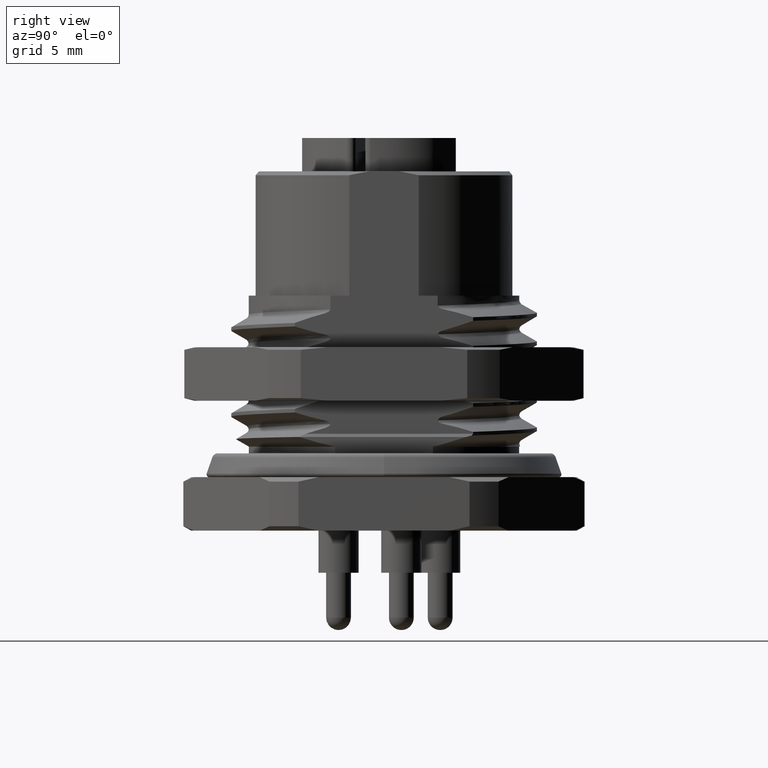
[diagram: clean part render]
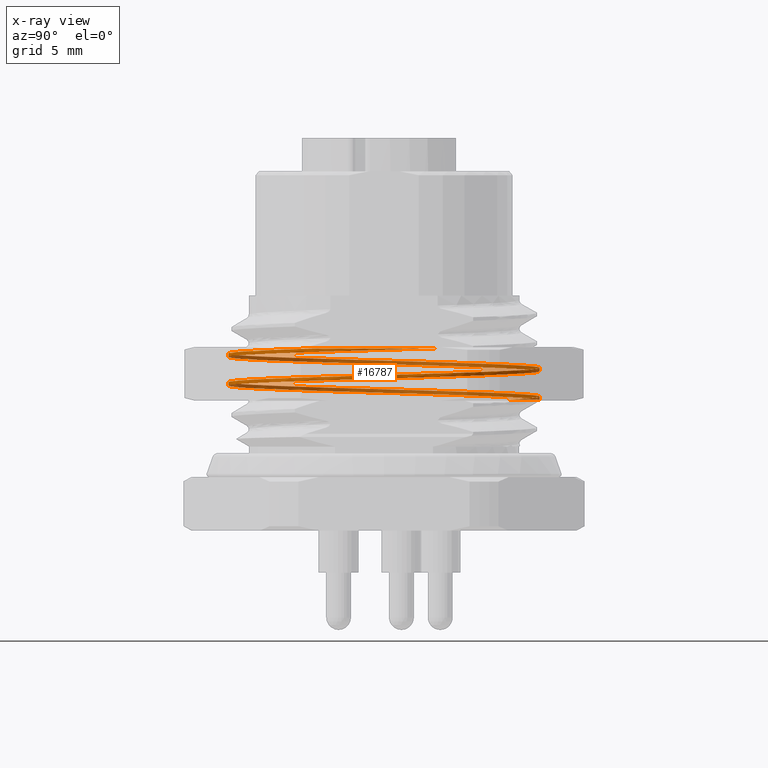
[diagram: x-ray — body ghosted, one internal face saturated and labeled with its STEP entity id]
A machine part, right view, then the same camera in x-ray: the body is ghosted and one INTERNAL B-rep face — a face not visible from any outside direction — is saturated and labeled: STEP entity #16787.
In plain terms, the highlighted face is a freeform B-spline surface patch.
Its self-contained STEP definition (entity closure, byte-faithful):
#15672=CARTESIAN_POINT('',(0.E0,0.E0,-2.738800871466E0));
#15673=DIRECTION('',(0.E0,0.E0,1.E0));
#15674=DIRECTION('',(0.E0,1.E0,0.E0));
#15675=AXIS2_PLACEMENT_3D('',#15672,#15673,#15674);
#15707=CARTESIAN_POINT('',(1.115435560299E0,8.067251050440E0,
-2.738800871466E0));
#15708=CARTESIAN_POINT('',(7.237404196698E-1,8.121409609027E0,
-2.727209521929E0));
#15709=CARTESIAN_POINT('',(-6.754921789470E-2,8.172570524194E0,
-2.704026822856E0));
#15710=CARTESIAN_POINT('',(-1.253055727409E0,8.076219714956E0,
-2.669252774247E0));
#15711=CARTESIAN_POINT('',(-2.412022167438E0,7.808816926826E0,
-2.634478725637E0));
#15712=CARTESIAN_POINT('',(-3.519902907004E0,7.376025797562E0,
-2.599704677028E0));
#15713=CARTESIAN_POINT('',(-4.553233120826E0,6.787012677389E0,
-2.564930628418E0));
#15714=CARTESIAN_POINT('',(-5.490127255637E0,6.054252694288E0,
-2.530156579809E0));
#15715=CARTESIAN_POINT('',(-6.310742160722E0,5.193265479440E0,
-2.495382531199E0));
#15716=CARTESIAN_POINT('',(-6.997697466675E0,4.222286480924E0,
-2.460608482590E0));
#15717=CARTESIAN_POINT('',(-7.536443667712E0,3.161880738521E0,
-2.425834433980E0));
#15718=CARTESIAN_POINT('',(-7.915570283447E0,2.034507323477E0,
-2.391060385371E0));
#15719=CARTESIAN_POINT('',(-8.127047527343E0,8.640436619258E-1,
-2.356286336761E0));
#15720=CARTESIAN_POINT('',(-8.166396375700E0,-3.247201816662E-1,
-2.321512288152E0));
#15721=CARTESIAN_POINT('',(-8.032783431867E0,-1.506606550544E0,
-2.286738239542E0));
#15722=CARTESIAN_POINT('',(-7.729038577371E0,-2.656583450776E0,
-2.251964190933E0));
#15723=CARTESIAN_POINT('',(-7.261595035873E0,-3.750294721272E0,
-2.217190142323E0));
#15724=CARTESIAN_POINT('',(-6.640353119454E0,-4.764575889875E0,
-2.182416093714E0));
#15725=CARTESIAN_POINT('',(-5.878470543010E0,-5.677944789833E0,
-2.147642045104E0));
#15726=CARTESIAN_POINT('',(-4.992083747854E0,-6.471056545560E0,
-2.112867996495E0));
#15727=CARTESIAN_POINT('',(-3.999966136796E0,-7.127113291221E0,
-2.078093947885E0));
#15728=CARTESIAN_POINT('',(-2.923130459178E0,-7.632219944423E0,
-2.043319899276E0));
#15729=CARTESIAN_POINT('',(-1.784383767233E0,-7.975678499830E0,
-2.008545850666E0));
#15730=CARTESIAN_POINT('',(-6.078443696520E-1,-8.150214609672E0,
-1.973771802057E0));
#15731=CARTESIAN_POINT('',(5.815689868591E-1,-8.152131652209E0,
-1.938997753447E0));
#15732=CARTESIAN_POINT('',(1.758664889058E0,-7.981389025064E0,
-1.904223704838E0));
#15733=CARTESIAN_POINT('',(2.898512803642E0,-7.641603005165E0,
-1.869449656228E0));
#15734=CARTESIAN_POINT('',(3.976971098357E0,-7.139970157098E0,
-1.834675607619E0));
#15735=CARTESIAN_POINT('',(4.971198354434E0,-6.487114912062E0,
-1.799901559009E0));
#15736=CARTESIAN_POINT('',(5.860137140892E0,-5.696864545639E0,
-1.765127510400E0));
#15737=CARTESIAN_POINT('',(6.624960004520E0,-4.785956320311E0,
-1.730353461790E0));
#15738=CARTESIAN_POINT('',(7.249468229618E0,-3.773682995322E0,
-1.695579413181E0));
#15739=CARTESIAN_POINT('',(7.720434921863E0,-2.681484211907E0,
-1.660805364571E0));
#15740=CARTESIAN_POINT('',(8.027885149914E0,-1.532492408206E0,
-1.626031315962E0));
#15741=CARTESIAN_POINT('',(8.165307211424E0,-3.510428812653E-1,
-1.591257267352E0));
#15742=CARTESIAN_POINT('',(8.129790548914E0,8.378416271639E-1,
-1.556483218743E0));
#15743=CARTESIAN_POINT('',(7.922087394497E0,2.008980904681E0,
-1.521709170133E0));
#15744=CARTESIAN_POINT('',(7.546596837830E0,3.137570577482E0,
-1.486935121524E0));
#15745=CARTESIAN_POINT('',(7.011271654732E0,4.199707459452E0,
-1.452161072914E0));
#15746=CARTESIAN_POINT('',(6.327449869812E0,5.172895814380E0,
-1.417387024305E0));
#15747=CARTESIAN_POINT('',(5.509614620555E0,6.036523808815E0,
-1.382612975695E0));
#15748=CARTESIAN_POINT('',(4.575087408870E0,6.772300064425E0,
-1.347838927086E0));
#15749=CARTESIAN_POINT('',(3.543661236953E0,7.364641063836E0,
-1.313064878476E0));
#15750=CARTESIAN_POINT('',(2.437181397511E0,7.801001204784E0,
-1.278290829867E0));
#15751=CARTESIAN_POINT('',(1.279082797112E0,8.072138512163E0,
-1.243516781257E0));
#15752=CARTESIAN_POINT('',(9.389361198437E-2,8.172310380244E0,
-1.208742732648E0));
#15753=CARTESIAN_POINT('',(-1.093284211296E0,8.099395199319E0,
-1.173968684038E0));
#15754=CARTESIAN_POINT('',(-2.257306607402E0,7.854937290749E0,
-1.139194635429E0));
#15755=CARTESIAN_POINT('',(-3.373519935913E0,7.444114198709E0,
-1.104420586819E0));
#15756=CARTESIAN_POINT('',(-4.418283137924E0,6.875627031374E0,
-1.069646538210E0));
#15757=CARTESIAN_POINT('',(-5.369468446482E0,6.161516174097E0,
-1.034872489600E0));
#15758=CARTESIAN_POINT('',(-6.206930045968E0,5.316906277703E0,
-1.000098440991E0));
#15759=CARTESIAN_POINT('',(-6.912930754340E0,4.359685922990E0,
-9.653243923812E-1));
#15760=CARTESIAN_POINT('',(-7.472517691260E0,3.310128746021E0,
-9.305503437717E-1));
#15761=CARTESIAN_POINT('',(-7.873838975549E0,2.190464048678E0,
-8.957762951622E-1));
#15762=CARTESIAN_POINT('',(-8.108394744431E0,1.024405988810E0,
-8.610022465527E-1));
#15763=CARTESIAN_POINT('',(-8.171217178039E0,-1.633486784233E-1,
-8.262281979432E-1));
#15764=CARTESIAN_POINT('',(-8.060975716331E0,-1.347643670315E0,
-7.914541493337E-1));
#15765=CARTESIAN_POINT('',(-7.780005239947E0,-2.503395979030E0,
-7.566801007242E-1));
#15766=CARTESIAN_POINT('',(-7.334256618145E0,-3.606127122083E0,
-7.219060521147E-1));
#15767=CARTESIAN_POINT('',(-6.733170671201E0,-4.632481589159E0,
-6.871320035052E-1));
#15768=CARTESIAN_POINT('',(-5.989478216709E0,-5.560721504714E0,
-6.523579548957E-1));
#15769=CARTESIAN_POINT('',(-5.118930434729E0,-6.371187029575E0,
-6.175839062862E-1));
#15770=CARTESIAN_POINT('',(-4.139965262587E0,-7.046712750353E0,
-5.828098576767E-1));
#15771=CARTESIAN_POINT('',(-3.073316884969E0,-7.572991237681E0,
-5.480358090672E-1));
#15772=CARTESIAN_POINT('',(-1.941576590190E0,-7.938876073214E0,
-5.132617604577E-1));
#15773=CARTESIAN_POINT('',(-7.687142935809E-1,-8.136617927387E0,
-4.784877118481E-1));
#15774=CARTESIAN_POINT('',(4.204291380334E-1,-8.162028687851E0,
-4.437136632386E-1));
#15775=CARTESIAN_POINT('',(1.600668008339E0,-8.014570162433E0,
-4.089396146291E-1));
#15776=CARTESIAN_POINT('',(2.747005216920E0,-7.697365477840E0,
-3.741655660196E-1));
#15777=CARTESIAN_POINT('',(3.835161690259E0,-7.217132932936E0,
-3.393915174101E-1));
#15778=CARTESIAN_POINT('',(4.842090605083E0,-6.584043706660E0,
-3.046174688006E-1));
#15779=CARTESIAN_POINT('',(5.746465513247E0,-5.811506437616E0,
-2.698434201911E-1));
#15780=CARTESIAN_POINT('',(6.529132028778E0,-4.915883225465E0,
-2.350693715816E-1));
#15781=CARTESIAN_POINT('',(7.173513514342E0,-3.916143115438E0,
-2.002953229721E-1));
#15782=CARTESIAN_POINT('',(7.665962160443E0,-2.833460232216E0,
-1.655212743626E-1));
#15783=CARTESIAN_POINT('',(7.996048075239E0,-1.690765719641E0,
-1.307472257531E-1));
#15784=CARTESIAN_POINT('',(8.156780061986E0,-5.122605686223E-1,
-9.597317714360E-2));
#15785=CARTESIAN_POINT('',(8.148762790699E0,2.806407197604E-1,
-7.279047807060E-2));
#15786=CARTESIAN_POINT('',(8.116003443870E0,6.747029710054E-1,
-6.119912853410E-2));
#15788=CARTESIAN_POINT('',(0.E0,0.E0,-6.119912853410E-2));
#15789=DIRECTION('',(0.E0,0.E0,-1.E0));
#15790=DIRECTION('',(6.444945728320E-1,7.646088840643E-1,0.E0));
#15791=AXIS2_PLACEMENT_3D('',#15788,#15789,#15790);
#15818=CARTESIAN_POINT('',(-4.929264283971E0,6.482830370970E0,
-2.738800871466E0));
#15819=CARTESIAN_POINT('',(-5.244029888506E0,6.243496196933E0,
-2.727209521929E0));
#15820=CARTESIAN_POINT('',(-5.838634979680E0,5.718899670726E0,
-2.704026822856E0));
#15821=CARTESIAN_POINT('',(-6.606884292705E0,4.810878660188E0,
-2.669252774247E0));
#15822=CARTESIAN_POINT('',(-7.235201218508E0,3.800965148563E0,
-2.634478725637E0));
#15823=CARTESIAN_POINT('',(-7.710278939642E0,2.710548231254E0,
-2.599704677028E0));
#15824=CARTESIAN_POINT('',(-8.022055255068E0,1.562722758601E0,
-2.564930628418E0));
#15825=CARTESIAN_POINT('',(-8.163926890642E0,3.817992844935E-1,
-2.530156579809E0));
#15826=CARTESIAN_POINT('',(-8.132889033946E0,-8.072105800706E-1,
-2.495382531199E0));
#15827=CARTESIAN_POINT('',(-7.929599061182E0,-1.979123970603E0,
-2.460608482590E0));
#15828=CARTESIAN_POINT('',(-7.558362591134E0,-3.109120117039E0,
-2.425834433980E0));
#15829=CARTESIAN_POINT('',(-7.027042299636E0,-4.173266044790E0,
-2.391060385371E0));
#15830=CARTESIAN_POINT('',(-6.346891388838E0,-5.149023466611E0,
-2.356286336761E0));
#15831=CARTESIAN_POINT('',(-5.532315248243E0,-6.015726137008E0,
-2.321512288152E0));
#15832=CARTESIAN_POINT('',(-4.600566352829E0,-6.755017556945E0,
-2.286738239542E0));
#15833=CARTESIAN_POINT('',(-3.571378860896E0,-7.351239758936E0,
-2.251964190933E0));
#15834=CARTESIAN_POINT('',(-2.466550650591E0,-7.791764938028E0,
-2.217190142323E0));
#15835=CARTESIAN_POINT('',(-1.309481647479E0,-8.067262904873E0,
-2.182416093714E0));
#15836=CARTESIAN_POINT('',(-1.246782212296E-1,-8.171898696299E0,
-2.147642045104E0));
#15837=CARTESIAN_POINT('',(1.062765851836E0,-8.103456158060E0,
-2.112867996495E0));
#15838=CARTESIAN_POINT('',(2.227700867301E0,-7.863384882304E0,
-2.078093947885E0));
#15839=CARTESIAN_POINT('',(3.345453855744E0,-7.456769505658E0,
-2.043319899276E0));
#15840=CARTESIAN_POINT('',(4.392351148731E0,-6.892222018164E0,
-2.008545850666E0));
#15841=CARTESIAN_POINT('',(5.346219779912E0,-6.181699363953E0,
-1.973771802057E0));
#15842=CARTESIAN_POINT('',(6.186857101710E0,-5.340250196802E0,
-1.938997753447E0));
#15843=CARTESIAN_POINT('',(6.896458671250E0,-4.385696154222E0,
-1.904223704838E0));
#15844=CARTESIAN_POINT('',(7.459995343049E0,-3.338254400597E0,
-1.869449656228E0));
#15845=CARTESIAN_POINT('',(7.865531581745E0,-2.220109433787E0,
-1.834675607619E0));
#15846=CARTESIAN_POINT('',(8.104478253109E0,-1.054943224209E0,
-1.799901559009E0));
#15847=CARTESIAN_POINT('',(8.171774539295E0,1.325663620959E-1,
-1.765127510400E0));
#15848=CARTESIAN_POINT('',(8.065995125422E0,1.317268233159E0,
-1.730353461790E0));
#15849=CARTESIAN_POINT('',(7.789380387315E0,2.474070763568E0,
-1.695579413181E0));
#15850=CARTESIAN_POINT('',(7.347788941019E0,3.578473227463E0,
-1.660805364571E0));
#15851=CARTESIAN_POINT('',(6.750573559098E0,4.607084716459E0,
-1.626031315962E0));
#15852=CARTESIAN_POINT('',(6.010383081753E0,5.538119551977E0,
-1.591257267352E0));
#15853=CARTESIAN_POINT('',(5.142894518236E0,6.351858699288E0,
-1.556483218743E0));
#15854=CARTESIAN_POINT('',(4.166481012555E0,7.031067410674E0,
-1.521709170133E0));
#15855=CARTESIAN_POINT('',(3.101822705875E0,7.561360252146E0,
-1.486935121524E0));
#15856=CARTESIAN_POINT('',(1.971468737416E0,7.931505782562E0,
-1.452161072914E0));
#15857=CARTESIAN_POINT('',(7.993596605364E-1,8.133664432132E0,
-1.417387024305E0));
#15858=CARTESIAN_POINT('',(-3.896796109023E-1,8.163554542126E0,
-1.382612975695E0));
#15859=CARTESIAN_POINT('',(-1.570465586667E0,8.020543049103E0,
-1.347838927086E0));
#15860=CARTESIAN_POINT('',(-2.717989578817E0,7.707658893001E0,
-1.313064878476E0));
#15861=CARTESIAN_POINT('',(-3.807947378111E0,7.231528865113E0,
-1.278290829867E0));
#15862=CARTESIAN_POINT('',(-4.817254009769E0,6.602237254657E0,
-1.243516781257E0));
#15863=CARTESIAN_POINT('',(-5.724532666220E0,5.833112266604E0,
-1.208742732648E0));
#15864=CARTESIAN_POINT('',(-6.510567461383E0,4.940443734342E0,
-1.173968684038E0));
#15865=CARTESIAN_POINT('',(-7.158710417298E0,3.943138105962E0,
-1.139194635429E0));
#15866=CARTESIAN_POINT('',(-7.655234063229E0,2.862318011437E0,
-1.104420586819E0));
#15867=CARTESIAN_POINT('',(-7.989622179328E0,1.720874891737E0,
-1.069646538210E0));
#15868=CARTESIAN_POINT('',(-8.154792526968E0,5.429841650736E-1,
-1.034872489600E0));
#15869=CARTESIAN_POINT('',(-8.147246848409E0,-6.464068011080E-1,
-1.000098440991E0));
#15870=CARTESIAN_POINT('',(-7.967144958826E0,-1.822107067786E0,
-9.653243923812E-1));
#15871=CARTESIAN_POINT('',(-7.618301361481E0,-2.959215660793E0,
-9.305503437717E-1));
#15872=CARTESIAN_POINT('',(-7.108104457696E0,-4.033648965875E0,
-8.957762951622E-1));
#15873=CARTESIAN_POINT('',(-6.447360062766E0,-5.022650812317E0,
-8.610022465527E-1));
#15874=CARTESIAN_POINT('',(-5.650062542071E0,-5.905274441727E0,
-8.262281979432E-1));
#15875=CARTESIAN_POINT('',(-4.733098414675E0,-6.662826154E0,
-7.914541493337E-1));
#15876=CARTESIAN_POINT('',(-3.715888701987E0,-7.279261234210E0,
-7.566801007242E-1));
#15877=CARTESIAN_POINT('',(-2.619977596433E0,-7.741523774788E0,
-7.219060521147E-1));
#15878=CARTESIAN_POINT('',(-1.468576162009E0,-8.039823195680E0,
-6.871320035052E-1));
#15879=CARTESIAN_POINT('',(-2.860707310037E-1,-8.167841605852E0,
-6.523579548957E-1));
#15880=CARTESIAN_POINT('',(9.024935911021E-1,-8.122867614300E0,
-6.175839062862E-1));
#15881=CARTESIAN_POINT('',(2.071943373358E0,-7.905853756491E0,
-5.828098576767E-1));
#15882=CARTESIAN_POINT('',(3.197510024954E0,-7.521396319949E0,
-5.480358090672E-1));
#15883=CARTESIAN_POINT('',(4.255354386447E0,-6.977637996282E0,
-5.132617604576E-1));
#15884=CARTESIAN_POINT('',(5.223071635906E0,-6.286095421454E0,
-4.784877118481E-1));
#15885=CARTESIAN_POINT('',(6.080165816225E0,-5.461415256929E0,
-4.437136632386E-1));
#15886=CARTESIAN_POINT('',(6.808483933277E0,-4.521063977846E0,
-4.089396146291E-1));
#15887=CARTESIAN_POINT('',(7.392600430774E0,-3.484957938361E0,
-3.741655660196E-1));
#15888=CARTESIAN_POINT('',(7.820143898974E0,-2.375041549414E0,
-3.393915174101E-1));
#15889=CARTESIAN_POINT('',(8.082059096954E0,-1.214822502422E0,
-3.046174688006E-1));
#15890=CARTESIAN_POINT('',(8.172798741445E0,-2.887388486039E-2,
-2.698434201911E-1));
#15891=CARTESIAN_POINT('',(8.090440990682E0,1.157686275252E0,
-2.350693715816E-1));
#15892=CARTESIAN_POINT('',(7.836730170534E0,2.319726982918E0,
-2.002953229721E-1));
#15893=CARTESIAN_POINT('',(7.417039747720E0,3.432636612524E0,
-1.655212743626E-1));
#15894=CARTESIAN_POINT('',(6.840258829271E0,4.472843915097E0,
-1.307472257531E-1));
#15895=CARTESIAN_POINT('',(6.118602745033E0,5.418318218621E0,
-9.597317714360E-2));
#15896=CARTESIAN_POINT('',(5.551106660671E0,5.972127684043E0,
-7.279047807060E-2));
#15897=CARTESIAN_POINT('',(5.248763801144E0,6.226974751820E0,
-6.119912853410E-2));
#15965=CARTESIAN_POINT('',(0.E0,0.E0,-2.738800871466E0));
#15966=DIRECTION('',(0.E0,0.E0,1.E0));
#15967=DIRECTION('',(1.369640913923E-1,9.905760130697E-1,0.E0));
#15968=AXIS2_PLACEMENT_3D('',#15965,#15966,#15967);
#16445=CARTESIAN_POINT('',(5.248763801144E0,6.226974751820E0,
-6.119912853410E-2));
#16446=CARTESIAN_POINT('',(8.116003443870E0,6.747029710054E-1,
-6.119912853410E-2));
#16447=VERTEX_POINT('',#16445);
#16448=VERTEX_POINT('',#16446);
#16449=CARTESIAN_POINT('',(1.115435560299E0,8.067251050440E0,
-2.738800871466E0));
#16450=CARTESIAN_POINT('',(0.E0,8.144E0,-2.738800871466E0));
#16451=VERTEX_POINT('',#16449);
#16452=VERTEX_POINT('',#16450);
#16459=CARTESIAN_POINT('',(-4.929264283971E0,6.482830370970E0,
-2.738800871466E0));
#16460=VERTEX_POINT('',#16459);
#16635=CARTESIAN_POINT('',(1.115435560299E0,8.067251050440E0,
-2.738800871466E0));
#16636=CARTESIAN_POINT('',(1.067430847247E-1,8.206720052907E0,
-2.708950853310E0));
#16637=CARTESIAN_POINT('',(-1.963183026293E0,8.102780019307E0,
-2.649250816999E0));
#16638=CARTESIAN_POINT('',(-4.795373526970E0,6.820117908734E0,
-2.559700762533E0));
#16639=CARTESIAN_POINT('',(-6.960624197446E0,4.589020398506E0,
-2.470150708066E0));
#16640=CARTESIAN_POINT('',(-8.157933685578E0,1.719764354358E0,
-2.380600653599E0));
#16641=CARTESIAN_POINT('',(-8.220772961743E0,-1.388647585528E0,
-2.291050599133E0));
#16642=CARTESIAN_POINT('',(-7.140410911778E0,-4.303950220076E0,
-2.201500544666E0));
#16643=CARTESIAN_POINT('',(-5.067083596746E0,-6.620733962478E0,
-2.111950490200E0));
#16644=CARTESIAN_POINT('',(-2.289114054502E0,-8.016820529173E0,
-2.022400435733E0));
#16645=CARTESIAN_POINT('',(8.071859058385E-1,-8.298066368623E0,
-1.932850381266E0));
#16646=CARTESIAN_POINT('',(3.791236404217E0,-7.425360668882E0,
-1.843300326800E0));
#16647=CARTESIAN_POINT('',(6.248067323076E0,-5.520064244820E0,
-1.753750272333E0));
#16648=CARTESIAN_POINT('',(7.836025111501E0,-2.847132766610E0,
-1.664200217866E0));
#16649=CARTESIAN_POINT('',(8.334284068085E0,2.217286896183E-1,
-1.574650163400E0));
#16650=CARTESIAN_POINT('',(7.673554955383E0,3.259755954963E0,
-1.485100108933E0));
#16651=CARTESIAN_POINT('',(5.945720549743E0,5.844472746415E0,
-1.395550054467E0));
#16652=CARTESIAN_POINT('',(3.391058173765E0,7.616441360725E0,-1.306E0));
#16653=CARTESIAN_POINT('',(3.648260824521E-1,8.329247052933E0,
-1.216449945533E0));
#16654=CARTESIAN_POINT('',(-2.712139709973E0,7.883765136836E0,
-1.126899891067E0));
#16655=CARTESIAN_POINT('',(-5.411948023695E0,6.341945531788E0,
-1.037349836600E0));
#16656=CARTESIAN_POINT('',(-7.359156217255E0,3.918197839417E0,
-9.477997821335E-1));
#16657=CARTESIAN_POINT('',(-8.282980256301E0,9.495749651022E-1,
-8.582497276669E-1));
#16658=CARTESIAN_POINT('',(-8.054950672386E0,-2.151098370847E0,
-7.686996732003E-1));
#16659=CARTESIAN_POINT('',(-6.706777877928E0,-4.952634151721E0,
-6.791496187337E-1));
#16660=CARTESIAN_POINT('',(-4.425942417722E0,-7.065443246286E0,
-5.895995642670E-1));
#16661=CARTESIAN_POINT('',(-1.529623465516E0,-8.195712686037E0,
-5.000495098004E-1));
#16662=CARTESIAN_POINT('',(1.579409147888E0,-8.186264241368E0,
-4.104994553338E-1));
#16663=CARTESIAN_POINT('',(4.468804529033E0,-7.038411488867E0,
-3.209494008672E-1));
#16664=CARTESIAN_POINT('',(6.736757094648E0,-4.911779239799E0,
-2.313993464006E-1));
#16665=CARTESIAN_POINT('',(8.067873453033E0,-2.102097852579E0,
-1.418492919340E-1));
#16666=CARTESIAN_POINT('',(8.277066528840E0,9.998926089113E-1,
-5.229923746733E-2));
#16667=CARTESIAN_POINT('',(7.335164892106E0,3.962888800057E0,
3.725081699929E-2));
#16668=CARTESIAN_POINT('',(6.027356476453E0,5.570693136288E0,
9.695085331036E-2));
#16669=CARTESIAN_POINT('',(5.248763801144E0,6.226974751820E0,
1.268008714659E-1));
#16670=CARTESIAN_POINT('',(1.115435560299E0,8.067251050440E0,
-2.801467538133E0));
#16671=CARTESIAN_POINT('',(1.067430847247E-1,8.206720052907E0,
-2.771617519977E0));
#16672=CARTESIAN_POINT('',(-1.963183026293E0,8.102780019307E0,
-2.711917483666E0));
#16673=CARTESIAN_POINT('',(-4.795373526970E0,6.820117908734E0,
-2.622367429199E0));
#16674=CARTESIAN_POINT('',(-6.960624197446E0,4.589020398506E0,
-2.532817374733E0));
#16675=CARTESIAN_POINT('',(-8.157933685578E0,1.719764354358E0,
-2.443267320266E0));
#16676=CARTESIAN_POINT('',(-8.220772961743E0,-1.388647585528E0,
-2.353717265799E0));
#16677=CARTESIAN_POINT('',(-7.140410911778E0,-4.303950220076E0,
-2.264167211333E0));
#16678=CARTESIAN_POINT('',(-5.067083596746E0,-6.620733962478E0,
-2.174617156866E0));
#16679=CARTESIAN_POINT('',(-2.289114054502E0,-8.016820529173E0,
-2.085067102400E0));
#16680=CARTESIAN_POINT('',(8.071859058385E-1,-8.298066368623E0,
-1.995517047933E0));
#16681=CARTESIAN_POINT('',(3.791236404217E0,-7.425360668882E0,
-1.905966993466E0));
#16682=CARTESIAN_POINT('',(6.248067323076E0,-5.520064244820E0,-1.816416939E0));
#16683=CARTESIAN_POINT('',(7.836025111501E0,-2.847132766610E0,
-1.726866884533E0));
#16684=CARTESIAN_POINT('',(8.334284068085E0,2.217286896183E-1,
-1.637316830067E0));
#16685=CARTESIAN_POINT('',(7.673554955383E0,3.259755954963E0,
-1.547766775600E0));
#16686=CARTESIAN_POINT('',(5.945720549743E0,5.844472746415E0,
-1.458216721133E0));
#16687=CARTESIAN_POINT('',(3.391058173765E0,7.616441360725E0,
-1.368666666667E0));
#16688=CARTESIAN_POINT('',(3.648260824521E-1,8.329247052933E0,
-1.279116612200E0));
#16689=CARTESIAN_POINT('',(-2.712139709973E0,7.883765136836E0,
-1.189566557733E0));
#16690=CARTESIAN_POINT('',(-5.411948023695E0,6.341945531788E0,
-1.100016503267E0));
#16691=CARTESIAN_POINT('',(-7.359156217255E0,3.918197839417E0,
-1.010466448800E0));
#16692=CARTESIAN_POINT('',(-8.282980256301E0,9.495749651022E-1,
-9.209163943336E-1));
#16693=CARTESIAN_POINT('',(-8.054950672386E0,-2.151098370847E0,
-8.313663398670E-1));
#16694=CARTESIAN_POINT('',(-6.706777877928E0,-4.952634151721E0,
-7.418162854003E-1));
#16695=CARTESIAN_POINT('',(-4.425942417722E0,-7.065443246286E0,
-6.522662309337E-1));
#16696=CARTESIAN_POINT('',(-1.529623465516E0,-8.195712686037E0,
-5.627161764671E-1));
#16697=CARTESIAN_POINT('',(1.579409147888E0,-8.186264241368E0,
-4.731661220005E-1));
#16698=CARTESIAN_POINT('',(4.468804529033E0,-7.038411488867E0,
-3.836160675339E-1));
#16699=CARTESIAN_POINT('',(6.736757094648E0,-4.911779239799E0,
-2.940660130672E-1));
#16700=CARTESIAN_POINT('',(8.067873453033E0,-2.102097852579E0,
-2.045159586006E-1));
#16701=CARTESIAN_POINT('',(8.277066528840E0,9.998926089113E-1,
-1.149659041340E-1));
#16702=CARTESIAN_POINT('',(7.335164892106E0,3.962888800057E0,
-2.541584966738E-2));
#16703=CARTESIAN_POINT('',(6.027356476453E0,5.570693136288E0,
3.428418664370E-2));
#16704=CARTESIAN_POINT('',(5.248763801144E0,6.226974751820E0,
6.413420479924E-2));
#16705=CARTESIAN_POINT('',(1.115435560299E0,8.067251050440E0,
-2.864134204799E0));
#16706=CARTESIAN_POINT('',(1.067430847247E-1,8.206720052907E0,
-2.834284186644E0));
#16707=CARTESIAN_POINT('',(-1.963183026293E0,8.102780019307E0,
-2.774584150333E0));
#16708=CARTESIAN_POINT('',(-4.795373526970E0,6.820117908734E0,
-2.685034095866E0));
#16709=CARTESIAN_POINT('',(-6.960624197446E0,4.589020398506E0,
-2.595484041399E0));
#16710=CARTESIAN_POINT('',(-8.157933685578E0,1.719764354358E0,
-2.505933986933E0));
#16711=CARTESIAN_POINT('',(-8.220772961743E0,-1.388647585528E0,
-2.416383932466E0));
#16712=CARTESIAN_POINT('',(-7.140410911778E0,-4.303950220076E0,-2.326833878E0));
#16713=CARTESIAN_POINT('',(-5.067083596746E0,-6.620733962478E0,
-2.237283823533E0));
#16714=CARTESIAN_POINT('',(-2.289114054502E0,-8.016820529173E0,
-2.147733769066E0));
#16715=CARTESIAN_POINT('',(8.071859058385E-1,-8.298066368623E0,
-2.058183714600E0));
#16716=CARTESIAN_POINT('',(3.791236404217E0,-7.425360668882E0,
-1.968633660133E0));
#16717=CARTESIAN_POINT('',(6.248067323076E0,-5.520064244820E0,
-1.879083605666E0));
#16718=CARTESIAN_POINT('',(7.836025111501E0,-2.847132766610E0,
-1.789533551200E0));
#16719=CARTESIAN_POINT('',(8.334284068085E0,2.217286896183E-1,
-1.699983496733E0));
#16720=CARTESIAN_POINT('',(7.673554955383E0,3.259755954963E0,
-1.610433442267E0));
#16721=CARTESIAN_POINT('',(5.945720549743E0,5.844472746415E0,
-1.520883387800E0));
#16722=CARTESIAN_POINT('',(3.391058173765E0,7.616441360725E0,
-1.431333333333E0));
#16723=CARTESIAN_POINT('',(3.648260824521E-1,8.329247052933E0,
-1.341783278867E0));
#16724=CARTESIAN_POINT('',(-2.712139709973E0,7.883765136836E0,
-1.252233224400E0));
#16725=CARTESIAN_POINT('',(-5.411948023695E0,6.341945531788E0,
-1.162683169933E0));
#16726=CARTESIAN_POINT('',(-7.359156217255E0,3.918197839417E0,
-1.073133115467E0));
#16727=CARTESIAN_POINT('',(-8.282980256301E0,9.495749651022E-1,
-9.835830610002E-1));
#16728=CARTESIAN_POINT('',(-8.054950672386E0,-2.151098370847E0,
-8.940330065336E-1));
#16729=CARTESIAN_POINT('',(-6.706777877928E0,-4.952634151721E0,
-8.044829520670E-1));
#16730=CARTESIAN_POINT('',(-4.425942417722E0,-7.065443246286E0,
-7.149328976004E-1));
#16731=CARTESIAN_POINT('',(-1.529623465516E0,-8.195712686037E0,
-6.253828431338E-1));
#16732=CARTESIAN_POINT('',(1.579409147888E0,-8.186264241368E0,
-5.358327886671E-1));
#16733=CARTESIAN_POINT('',(4.468804529033E0,-7.038411488867E0,
-4.462827342005E-1));
#16734=CARTESIAN_POINT('',(6.736757094648E0,-4.911779239799E0,
-3.567326797339E-1));
#16735=CARTESIAN_POINT('',(8.067873453033E0,-2.102097852579E0,
-2.671826252673E-1));
#16736=CARTESIAN_POINT('',(8.277066528840E0,9.998926089113E-1,
-1.776325708007E-1));
#16737=CARTESIAN_POINT('',(7.335164892106E0,3.962888800057E0,
-8.808251633405E-2));
#16738=CARTESIAN_POINT('',(6.027356476453E0,5.570693136288E0,
-2.838248002297E-2));
#16739=CARTESIAN_POINT('',(5.248763801144E0,6.226974751820E0,
1.467538132569E-3));
#16740=CARTESIAN_POINT('',(1.115435560299E0,8.067251050440E0,
-2.926800871466E0));
#16741=CARTESIAN_POINT('',(1.067430847247E-1,8.206720052907E0,
-2.896950853310E0));
#16742=CARTESIAN_POINT('',(-1.963183026293E0,8.102780019307E0,
-2.837250816999E0));
#16743=CARTESIAN_POINT('',(-4.795373526970E0,6.820117908734E0,
-2.747700762533E0));
#16744=CARTESIAN_POINT('',(-6.960624197446E0,4.589020398506E0,
-2.658150708066E0));
#16745=CARTESIAN_POINT('',(-8.157933685578E0,1.719764354358E0,
-2.568600653599E0));
#16746=CARTESIAN_POINT('',(-8.220772961743E0,-1.388647585528E0,
-2.479050599133E0));
#16747=CARTESIAN_POINT('',(-7.140410911778E0,-4.303950220076E0,
-2.389500544666E0));
#16748=CARTESIAN_POINT('',(-5.067083596746E0,-6.620733962478E0,
-2.299950490200E0));
#16749=CARTESIAN_POINT('',(-2.289114054502E0,-8.016820529173E0,
-2.210400435733E0));
#16750=CARTESIAN_POINT('',(8.071859058385E-1,-8.298066368623E0,
-2.120850381266E0));
#16751=CARTESIAN_POINT('',(3.791236404217E0,-7.425360668882E0,
-2.031300326800E0));
#16752=CARTESIAN_POINT('',(6.248067323076E0,-5.520064244820E0,
-1.941750272333E0));
#16753=CARTESIAN_POINT('',(7.836025111501E0,-2.847132766610E0,
-1.852200217866E0));
#16754=CARTESIAN_POINT('',(8.334284068085E0,2.217286896183E-1,
-1.762650163400E0));
#16755=CARTESIAN_POINT('',(7.673554955383E0,3.259755954963E0,
-1.673100108933E0));
#16756=CARTESIAN_POINT('',(5.945720549743E0,5.844472746415E0,
-1.583550054467E0));
#16757=CARTESIAN_POINT('',(3.391058173765E0,7.616441360725E0,-1.494E0));
#16758=CARTESIAN_POINT('',(3.648260824521E-1,8.329247052933E0,
-1.404449945533E0));
#16759=CARTESIAN_POINT('',(-2.712139709973E0,7.883765136836E0,
-1.314899891067E0));
#16760=CARTESIAN_POINT('',(-5.411948023695E0,6.341945531788E0,
-1.225349836600E0));
#16761=CARTESIAN_POINT('',(-7.359156217255E0,3.918197839417E0,
-1.135799782134E0));
#16762=CARTESIAN_POINT('',(-8.282980256301E0,9.495749651022E-1,
-1.046249727667E0));
#16763=CARTESIAN_POINT('',(-8.054950672386E0,-2.151098370847E0,
-9.566996732003E-1));
#16764=CARTESIAN_POINT('',(-6.706777877928E0,-4.952634151721E0,
-8.671496187337E-1));
#16765=CARTESIAN_POINT('',(-4.425942417722E0,-7.065443246286E0,
-7.775995642670E-1));
#16766=CARTESIAN_POINT('',(-1.529623465516E0,-8.195712686037E0,
-6.880495098004E-1));
#16767=CARTESIAN_POINT('',(1.579409147888E0,-8.186264241368E0,
-5.984994553338E-1));
#16768=CARTESIAN_POINT('',(4.468804529033E0,-7.038411488867E0,
-5.089494008672E-1));
#16769=CARTESIAN_POINT('',(6.736757094648E0,-4.911779239799E0,
-4.193993464006E-1));
#16770=CARTESIAN_POINT('',(8.067873453033E0,-2.102097852579E0,
-3.298492919340E-1));
#16771=CARTESIAN_POINT('',(8.277066528840E0,9.998926089113E-1,
-2.402992374673E-1));
#16772=CARTESIAN_POINT('',(7.335164892106E0,3.962888800057E0,
-1.507491830007E-1));
#16773=CARTESIAN_POINT('',(6.027356476453E0,5.570693136288E0,
-9.104914668964E-2));
#16774=CARTESIAN_POINT('',(5.248763801144E0,6.226974751820E0,
-6.119912853410E-2));
#16775=B_SPLINE_SURFACE_WITH_KNOTS('',3,3,((#16635,#16636,#16637,#16638,#16639,
#16640,#16641,#16642,#16643,#16644,#16645,#16646,#16647,#16648,#16649,#16650,
#16651,#16652,#16653,#16654,#16655,#16656,#16657,#16658,#16659,#16660,#16661,
#16662,#16663,#16664,#16665,#16666,#16667,#16668,#16669),(#16670,#16671,#16672,
#16673,#16674,#16675,#16676,#16677,#16678,#16679,#16680,#16681,#16682,#16683,
#16684,#16685,#16686,#16687,#16688,#16689,#16690,#16691,#16692,#16693,#16694,
#16695,#16696,#16697,#16698,#16699,#16700,#16701,#16702,#16703,#16704),(#16705,
#16706,#16707,#16708,#16709,#16710,#16711,#16712,#16713,#16714,#16715,#16716,
#16717,#16718,#16719,#16720,#16721,#16722,#16723,#16724,#16725,#16726,#16727,
#16728,#16729,#16730,#16731,#16732,#16733,#16734,#16735,#16736,#16737,#16738,
#16739),(#16740,#16741,#16742,#16743,#16744,#16745,#16746,#16747,#16748,#16749,
#16750,#16751,#16752,#16753,#16754,#16755,#16756,#16757,#16758,#16759,#16760,
#16761,#16762,#16763,#16764,#16765,#16766,#16767,#16768,#16769,#16770,#16771,
#16772,#16773,#16774)),.UNSPECIFIED.,.F.,.F.,.F.,(4,4),(4,1,1,1,1,1,1,1,1,1,1,1,
1,1,1,1,1,1,1,1,1,1,1,1,1,1,1,1,1,1,1,1,4),(0.E0,1.E0),(2.704053166661E-1,
2.869094232762E-1,3.034135298863E-1,3.199176364963E-1,3.364217431064E-1,
3.529258497164E-1,3.694299563265E-1,3.859340629366E-1,4.024381695466E-1,
4.189422761567E-1,4.354463827667E-1,4.519504893768E-1,4.684545959869E-1,
4.849587025969E-1,5.014628092070E-1,5.179669158170E-1,5.344710224271E-1,
5.509751290372E-1,5.674792356472E-1,5.839833422573E-1,6.004874488674E-1,
6.169915554774E-1,6.334956620875E-1,6.499997686975E-1,6.665038753076E-1,
6.830079819177E-1,6.995120885277E-1,7.160161951378E-1,7.325203017478E-1,
7.490244083579E-1,7.655285149680E-1,7.820326215780E-1,7.985367281881E-1),
.UNSPECIFIED.);
#16777=ORIENTED_EDGE('',*,*,#16776,.T.);
#16779=ORIENTED_EDGE('',*,*,#16778,.F.);
#16781=ORIENTED_EDGE('',*,*,#16780,.T.);
#16782=ORIENTED_EDGE('',*,*,#16623,.T.);
#16784=ORIENTED_EDGE('',*,*,#16783,.T.);
#16785=EDGE_LOOP('',(#16777,#16779,#16781,#16782,#16784));
#16786=FACE_OUTER_BOUND('',#16785,.F.);
#15676=CIRCLE('',#15675,8.144E0);
#15787=B_SPLINE_CURVE_WITH_KNOTS('',3,(#15707,#15708,#15709,#15710,#15711,
#15712,#15713,#15714,#15715,#15716,#15717,#15718,#15719,#15720,#15721,#15722,
#15723,#15724,#15725,#15726,#15727,#15728,#15729,#15730,#15731,#15732,#15733,
#15734,#15735,#15736,#15737,#15738,#15739,#15740,#15741,#15742,#15743,#15744,
#15745,#15746,#15747,#15748,#15749,#15750,#15751,#15752,#15753,#15754,#15755,
#15756,#15757,#15758,#15759,#15760,#15761,#15762,#15763,#15764,#15765,#15766,
#15767,#15768,#15769,#15770,#15771,#15772,#15773,#15774,#15775,#15776,#15777,
#15778,#15779,#15780,#15781,#15782,#15783,#15784,#15785,#15786),.UNSPECIFIED.,
.F.,.F.,(4,1,1,1,1,1,1,1,1,1,1,1,1,1,1,1,1,1,1,1,1,1,1,1,1,1,1,1,1,1,1,1,1,1,1,
1,1,1,1,1,1,1,1,1,1,1,1,1,1,1,1,1,1,1,1,1,1,1,1,1,1,1,1,1,1,1,1,1,1,1,1,1,1,1,1,
1,1,4),(0.E0,1.298701298701E-2,2.597402597403E-2,3.896103896104E-2,
5.194805194805E-2,6.493506493506E-2,7.792207792208E-2,9.090909090909E-2,
1.038961038961E-1,1.168831168831E-1,1.298701298701E-1,1.428571428571E-1,
1.558441558442E-1,1.688311688312E-1,1.818181818182E-1,1.948051948052E-1,
2.077922077922E-1,2.207792207792E-1,2.337662337662E-1,2.467532467532E-1,
2.597402597403E-1,2.727272727273E-1,2.857142857143E-1,2.987012987013E-1,
3.116883116883E-1,3.246753246753E-1,3.376623376623E-1,3.506493506494E-1,
3.636363636364E-1,3.766233766234E-1,3.896103896104E-1,4.025974025974E-1,
4.155844155844E-1,4.285714285714E-1,4.415584415584E-1,4.545454545455E-1,
4.675324675325E-1,4.805194805195E-1,4.935064935065E-1,5.064935064935E-1,
5.194805194805E-1,5.324675324675E-1,5.454545454545E-1,5.584415584416E-1,
5.714285714286E-1,5.844155844156E-1,5.974025974026E-1,6.103896103896E-1,
6.233766233766E-1,6.363636363636E-1,6.493506493506E-1,6.623376623377E-1,
6.753246753247E-1,6.883116883117E-1,7.012987012987E-1,7.142857142857E-1,
7.272727272727E-1,7.402597402597E-1,7.532467532468E-1,7.662337662338E-1,
7.792207792208E-1,7.922077922078E-1,8.051948051948E-1,8.181818181818E-1,
8.311688311688E-1,8.441558441558E-1,8.571428571429E-1,8.701298701299E-1,
8.831168831169E-1,8.961038961039E-1,9.090909090909E-1,9.220779220779E-1,
9.350649350649E-1,9.480519480519E-1,9.610389610390E-1,9.740259740260E-1,
9.870129870130E-1,1.E0),.UNSPECIFIED.);
#15792=CIRCLE('',#15791,8.144E0);
#15898=B_SPLINE_CURVE_WITH_KNOTS('',3,(#15818,#15819,#15820,#15821,#15822,
#15823,#15824,#15825,#15826,#15827,#15828,#15829,#15830,#15831,#15832,#15833,
#15834,#15835,#15836,#15837,#15838,#15839,#15840,#15841,#15842,#15843,#15844,
#15845,#15846,#15847,#15848,#15849,#15850,#15851,#15852,#15853,#15854,#15855,
#15856,#15857,#15858,#15859,#15860,#15861,#15862,#15863,#15864,#15865,#15866,
#15867,#15868,#15869,#15870,#15871,#15872,#15873,#15874,#15875,#15876,#15877,
#15878,#15879,#15880,#15881,#15882,#15883,#15884,#15885,#15886,#15887,#15888,
#15889,#15890,#15891,#15892,#15893,#15894,#15895,#15896,#15897),.UNSPECIFIED.,
.F.,.F.,(4,1,1,1,1,1,1,1,1,1,1,1,1,1,1,1,1,1,1,1,1,1,1,1,1,1,1,1,1,1,1,1,1,1,1,
1,1,1,1,1,1,1,1,1,1,1,1,1,1,1,1,1,1,1,1,1,1,1,1,1,1,1,1,1,1,1,1,1,1,1,1,1,1,1,1,
1,1,4),(0.E0,1.298701298701E-2,2.597402597403E-2,3.896103896104E-2,
5.194805194805E-2,6.493506493506E-2,7.792207792208E-2,9.090909090909E-2,
1.038961038961E-1,1.168831168831E-1,1.298701298701E-1,1.428571428571E-1,
1.558441558442E-1,1.688311688312E-1,1.818181818182E-1,1.948051948052E-1,
2.077922077922E-1,2.207792207792E-1,2.337662337662E-1,2.467532467532E-1,
2.597402597403E-1,2.727272727273E-1,2.857142857143E-1,2.987012987013E-1,
3.116883116883E-1,3.246753246753E-1,3.376623376623E-1,3.506493506494E-1,
3.636363636364E-1,3.766233766234E-1,3.896103896104E-1,4.025974025974E-1,
4.155844155844E-1,4.285714285714E-1,4.415584415584E-1,4.545454545455E-1,
4.675324675325E-1,4.805194805195E-1,4.935064935065E-1,5.064935064935E-1,
5.194805194805E-1,5.324675324675E-1,5.454545454545E-1,5.584415584416E-1,
5.714285714286E-1,5.844155844156E-1,5.974025974026E-1,6.103896103896E-1,
6.233766233766E-1,6.363636363636E-1,6.493506493506E-1,6.623376623377E-1,
6.753246753247E-1,6.883116883117E-1,7.012987012987E-1,7.142857142857E-1,
7.272727272727E-1,7.402597402597E-1,7.532467532468E-1,7.662337662338E-1,
7.792207792208E-1,7.922077922078E-1,8.051948051948E-1,8.181818181818E-1,
8.311688311688E-1,8.441558441558E-1,8.571428571429E-1,8.701298701299E-1,
8.831168831169E-1,8.961038961039E-1,9.090909090909E-1,9.220779220779E-1,
9.350649350649E-1,9.480519480519E-1,9.610389610390E-1,9.740259740260E-1,
9.870129870130E-1,1.E0),.UNSPECIFIED.);
#15969=CIRCLE('',#15968,8.144E0);
#16623=EDGE_CURVE('',#16452,#16460,#15676,.T.);
#16776=EDGE_CURVE('',#16447,#16448,#15792,.T.);
#16778=EDGE_CURVE('',#16451,#16448,#15787,.T.);
#16780=EDGE_CURVE('',#16451,#16452,#15969,.T.);
#16783=EDGE_CURVE('',#16460,#16447,#15898,.T.);
#16787=ADVANCED_FACE('',(#16786),#16775,.F.);